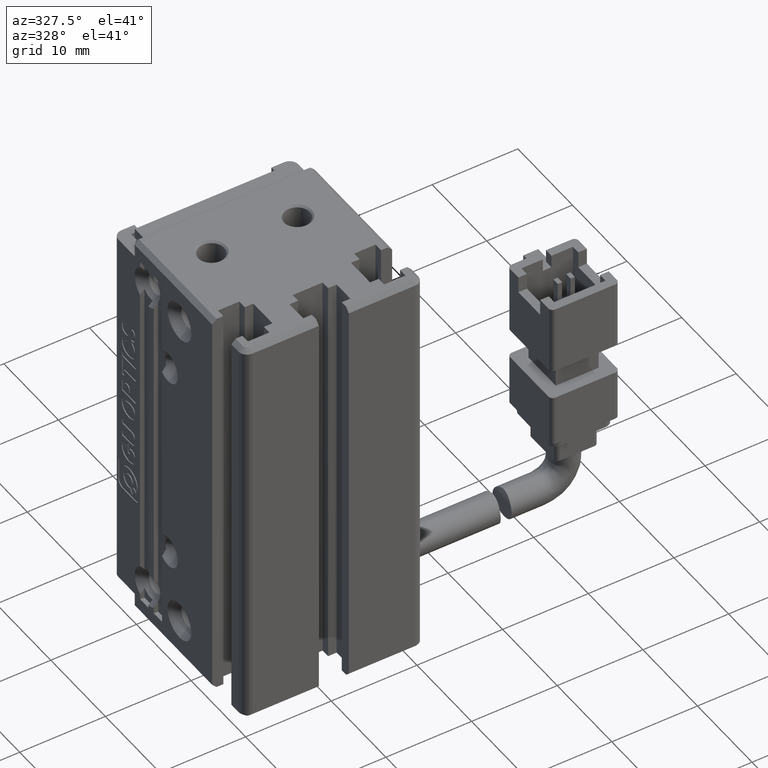
[diagram: clean part render]
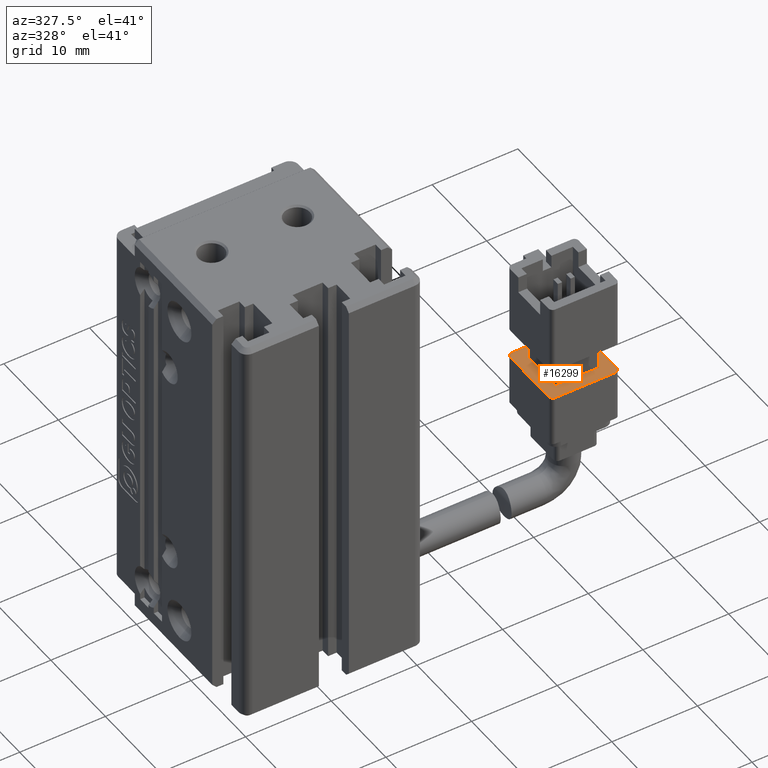
[diagram: same view with one face highlighted and labeled with its STEP entity id]
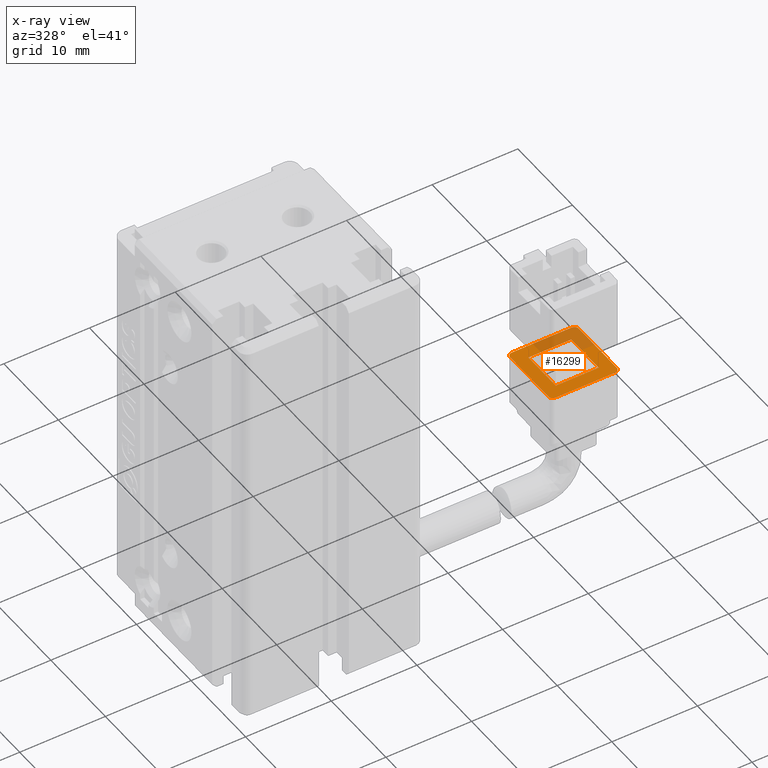
[diagram: x-ray of the same camera — body ghosted, the highlighted face saturated]
A machine part, auxiliary view. The second image highlights one B-rep face of the part: STEP entity #16299.
The next image is the same camera in x-ray: the body ghosted, the highlighted face saturated — about 27% of this face is hidden behind the body in this view.
In plain terms, the highlighted planar face has unit normal (-0, 0, 1).
Its self-contained STEP definition (entity closure, byte-faithful):
#130 = CARTESIAN_POINT ( 'NONE',  ( 71.92537974683536100, 23.99073232304857900, -120.4500000000000000 ) ) ;
#394 = CARTESIAN_POINT ( 'NONE',  ( 70.92537974683534700, 25.49073232304857200, -120.4500000000000000 ) ) ;
#407 = ORIENTED_EDGE ( 'NONE', *, *, #26810, .T. ) ;
#703 = CARTESIAN_POINT ( 'NONE',  ( 76.92537974683536100, 18.99073232304859400, -120.4500000000000000 ) ) ;
#716 = EDGE_CURVE ( 'NONE', #8096, #4804, #31120, .T. ) ;
#778 = CARTESIAN_POINT ( 'NONE',  ( 71.92537974683537500, 18.99073232304857600, -120.4500000000000000 ) ) ;
#1172 = DIRECTION ( 'NONE',  ( -1.041348031262155300E-030, 5.551115123125780200E-017, 1.000000000000000000 ) ) ;
#2326 = LINE ( 'NONE', #33787, #7002 ) ;
#2548 = DIRECTION ( 'NONE',  ( -1.000000000000000000, -3.217499018537929600E-015, -8.627409566576727700E-031 ) ) ;
#2911 = ORIENTED_EDGE ( 'NONE', *, *, #25783, .T. ) ;
#3463 = VECTOR ( 'NONE', #7252, 1000.000000000000000 ) ;
#4186 = CARTESIAN_POINT ( 'NONE',  ( 78.42537974683537500, 17.99073232304860100, -120.4500000000000000 ) ) ;
#4322 = DIRECTION ( 'NONE',  ( 1.000000000000000000, 3.304235192336770000E-015, 8.579261317967046800E-031 ) ) ;
#4655 = DIRECTION ( 'NONE',  ( 1.041348031262155300E-030, -5.551115123125780200E-017, -1.000000000000000000 ) ) ;
#4804 = VERTEX_POINT ( 'NONE', #6082 ) ;
#5125 = LINE ( 'NONE', #130, #35085 ) ;
#5440 = CARTESIAN_POINT ( 'NONE',  ( 71.92537974683537500, 18.99073232304857600, -120.4500000000000000 ) ) ;
#6082 = CARTESIAN_POINT ( 'NONE',  ( 78.42537974683534700, 24.99073232304859700, -120.4500000000000000 ) ) ;
#7002 = VECTOR ( 'NONE', #27921, 1000.000000000000000 ) ;
#7252 = DIRECTION ( 'NONE',  ( 3.390971366135610300E-015, -1.000000000000000000, 5.551115123125780200E-017 ) ) ;
#7375 = VECTOR ( 'NONE', #2548, 1000.000000000000000 ) ;
#7501 = DIRECTION ( 'NONE',  ( 1.000000000000000000, 0.0000000000000000000, 0.0000000000000000000 ) ) ;
#8096 = VERTEX_POINT ( 'NONE', #18659 ) ;
#8636 = CARTESIAN_POINT ( 'NONE',  ( 76.92537974683534700, 23.99073232304859700, -120.4500000000000000 ) ) ;
#9082 = VERTEX_POINT ( 'NONE', #8636 ) ;
#9547 = CARTESIAN_POINT ( 'NONE',  ( 77.92537974683537500, 17.49073232304860100, -120.4500000000000000 ) ) ;
#9774 = CARTESIAN_POINT ( 'NONE',  ( 77.92537974683537500, 17.99073232304860100, -120.4500000000000000 ) ) ;
#10120 = ORIENTED_EDGE ( 'NONE', *, *, #16005, .F. ) ;
#10759 = DIRECTION ( 'NONE',  ( 1.041348031262155300E-030, -5.551115123125780200E-017, -1.000000000000000000 ) ) ;
#10799 = VERTEX_POINT ( 'NONE', #22673 ) ;
#11018 = VERTEX_POINT ( 'NONE', #394 ) ;
#11138 = CARTESIAN_POINT ( 'NONE',  ( 70.42537974683536100, 17.99073232304857600, -120.4500000000000000 ) ) ;
#11722 = CIRCLE ( 'NONE', #26352, 0.5000000000000004400 ) ;
#11939 = ORIENTED_EDGE ( 'NONE', *, *, #24955, .F. ) ;
#12030 = VERTEX_POINT ( 'NONE', #703 ) ;
#12481 = AXIS2_PLACEMENT_3D ( 'NONE', #9774, #15804, #36760 ) ;
#12783 = CARTESIAN_POINT ( 'NONE',  ( 70.92537974683534700, 24.99073232304857200, -120.4500000000000000 ) ) ;
#13478 = VERTEX_POINT ( 'NONE', #4186 ) ;
#14421 = ORIENTED_EDGE ( 'NONE', *, *, #18698, .T. ) ;
#14670 = CARTESIAN_POINT ( 'NONE',  ( 70.92537974683536100, 17.49073232304857600, -120.4500000000000000 ) ) ;
#14772 = DIRECTION ( 'NONE',  ( -1.000000000000000000, -3.304235192336770000E-015, -8.579261317967046800E-031 ) ) ;
#14980 = ORIENTED_EDGE ( 'NONE', *, *, #17556, .T. ) ;
#15804 = DIRECTION ( 'NONE',  ( 1.041348031262155300E-030, -5.551115123125780200E-017, -1.000000000000000000 ) ) ;
#16005 = EDGE_CURVE ( 'NONE', #33101, #26695, #11722, .T. ) ;
#16299 = ADVANCED_FACE ( 'NONE', ( #17499, #24547 ), #27755, .T. ) ;
#16433 = LINE ( 'NONE', #14670, #38433 ) ;
#16596 = LINE ( 'NONE', #33123, #18046 ) ;
#17289 = EDGE_CURVE ( 'NONE', #34985, #26695, #2326, .T. ) ;
#17499 = FACE_BOUND ( 'NONE', #21614, .T. ) ;
#17556 = EDGE_CURVE ( 'NONE', #24849, #10799, #5125, .T. ) ;
#18032 = CIRCLE ( 'NONE', #12481, 0.5000000000000004400 ) ;
#18046 = VECTOR ( 'NONE', #14772, 1000.000000000000000 ) ;
#18598 = EDGE_CURVE ( 'NONE', #13478, #4804, #21819, .T. ) ;
#18659 = CARTESIAN_POINT ( 'NONE',  ( 77.92537974683534700, 25.49073232304859700, -120.4500000000000000 ) ) ;
#18698 = EDGE_CURVE ( 'NONE', #8096, #11018, #16596, .T. ) ;
#18714 = CARTESIAN_POINT ( 'NONE',  ( 70.92537974683536100, 17.49073232304857600, -120.4500000000000000 ) ) ;
#19083 = CARTESIAN_POINT ( 'NONE',  ( 71.92537974683536100, 23.99073232304857900, -120.4500000000000000 ) ) ;
#20282 = LINE ( 'NONE', #25208, #3463 ) ;
#20493 = VERTEX_POINT ( 'NONE', #9547 ) ;
#20851 = EDGE_CURVE ( 'NONE', #9082, #12030, #20282, .T. ) ;
#21614 = EDGE_LOOP ( 'NONE', ( #28098, #34446, #407, #14980 ) ) ;
#21768 = VECTOR ( 'NONE', #36778, 1000.000000000000000 ) ;
#21819 = LINE ( 'NONE', #32225, #35433 ) ;
#21830 = ORIENTED_EDGE ( 'NONE', *, *, #18598, .T. ) ;
#22673 = CARTESIAN_POINT ( 'NONE',  ( 71.92537974683536100, 23.99073232304857900, -120.4500000000000000 ) ) ;
#24483 = DIRECTION ( 'NONE',  ( -3.304235192336770000E-015, 1.000000000000000000, -5.551115123125780200E-017 ) ) ;
#24547 = FACE_OUTER_BOUND ( 'NONE', #36462, .T. ) ;
#24585 = LINE ( 'NONE', #19083, #21768 ) ;
#24849 = VERTEX_POINT ( 'NONE', #778 ) ;
#24955 = EDGE_CURVE ( 'NONE', #13478, #20493, #18032, .T. ) ;
#25208 = CARTESIAN_POINT ( 'NONE',  ( 76.92537974683534700, 23.99073232304859700, -120.4500000000000000 ) ) ;
#25783 = EDGE_CURVE ( 'NONE', #33101, #20493, #16433, .T. ) ;
#25845 = ORIENTED_EDGE ( 'NONE', *, *, #17289, .T. ) ;
#26352 = AXIS2_PLACEMENT_3D ( 'NONE', #29867, #29738, #38846 ) ;
#26478 = DIRECTION ( 'NONE',  ( -3.304235192336770000E-015, 1.000000000000000000, -5.551115123125780200E-017 ) ) ;
#26695 = VERTEX_POINT ( 'NONE', #11138 ) ;
#26810 = EDGE_CURVE ( 'NONE', #12030, #24849, #38753, .T. ) ;
#27755 = PLANE ( 'NONE',  #34663 ) ;
#27845 = CARTESIAN_POINT ( 'NONE',  ( 70.42537974683534700, 24.99073232304857200, -120.4500000000000000 ) ) ;
#27921 = DIRECTION ( 'NONE',  ( 3.304235192336770000E-015, -1.000000000000000000, 5.551115123125780200E-017 ) ) ;
#28098 = ORIENTED_EDGE ( 'NONE', *, *, #28632, .T. ) ;
#28189 = EDGE_CURVE ( 'NONE', #34985, #11018, #36380, .T. ) ;
#28632 = EDGE_CURVE ( 'NONE', #10799, #9082, #24585, .T. ) ;
#28737 = CARTESIAN_POINT ( 'NONE',  ( 70.92537974683534700, 24.99073232304857200, -120.4500000000000000 ) ) ;
#29648 = DIRECTION ( 'NONE',  ( 1.000000000000000000, 3.304235192336770000E-015, 8.579261317967046800E-031 ) ) ;
#29738 = DIRECTION ( 'NONE',  ( 1.041348031262155300E-030, -5.551115123125780200E-017, -1.000000000000000000 ) ) ;
#29867 = CARTESIAN_POINT ( 'NONE',  ( 70.92537974683536100, 17.99073232304857600, -120.4500000000000000 ) ) ;
#31120 = CIRCLE ( 'NONE', #34014, 0.5000000000000004400 ) ;
#32225 = CARTESIAN_POINT ( 'NONE',  ( 78.42537974683534700, 24.99073232304859700, -120.4500000000000000 ) ) ;
#32242 = AXIS2_PLACEMENT_3D ( 'NONE', #28737, #10759, #7501 ) ;
#33101 = VERTEX_POINT ( 'NONE', #18714 ) ;
#33123 = CARTESIAN_POINT ( 'NONE',  ( 70.92537974683534700, 25.49073232304857200, -120.4500000000000000 ) ) ;
#33787 = CARTESIAN_POINT ( 'NONE',  ( 70.42537974683534700, 24.99073232304857200, -120.4500000000000000 ) ) ;
#34014 = AXIS2_PLACEMENT_3D ( 'NONE', #37464, #4655, #38364 ) ;
#34446 = ORIENTED_EDGE ( 'NONE', *, *, #20851, .T. ) ;
#34663 = AXIS2_PLACEMENT_3D ( 'NONE', #12783, #1172, #4322 ) ;
#34985 = VERTEX_POINT ( 'NONE', #27845 ) ;
#35085 = VECTOR ( 'NONE', #24483, 1000.000000000000000 ) ;
#35405 = ORIENTED_EDGE ( 'NONE', *, *, #28189, .F. ) ;
#35433 = VECTOR ( 'NONE', #26478, 1000.000000000000000 ) ;
#36023 = ORIENTED_EDGE ( 'NONE', *, *, #716, .F. ) ;
#36380 = CIRCLE ( 'NONE', #32242, 0.5000000000000004400 ) ;
#36462 = EDGE_LOOP ( 'NONE', ( #36023, #14421, #35405, #25845, #10120, #2911, #11939, #21830 ) ) ;
#36760 = DIRECTION ( 'NONE',  ( 1.000000000000000000, 0.0000000000000000000, 0.0000000000000000000 ) ) ;
#36778 = DIRECTION ( 'NONE',  ( 1.000000000000000000, 3.390971366135610300E-015, 8.531113069357365900E-031 ) ) ;
#37464 = CARTESIAN_POINT ( 'NONE',  ( 77.92537974683534700, 24.99073232304859700, -120.4500000000000000 ) ) ;
#38364 = DIRECTION ( 'NONE',  ( 1.000000000000000000, 1.387778780781444400E-014, 0.0000000000000000000 ) ) ;
#38433 = VECTOR ( 'NONE', #29648, 1000.000000000000000 ) ;
#38753 = LINE ( 'NONE', #5440, #7375 ) ;
#38846 = DIRECTION ( 'NONE',  ( 1.000000000000000000, 0.0000000000000000000, 0.0000000000000000000 ) ) ;